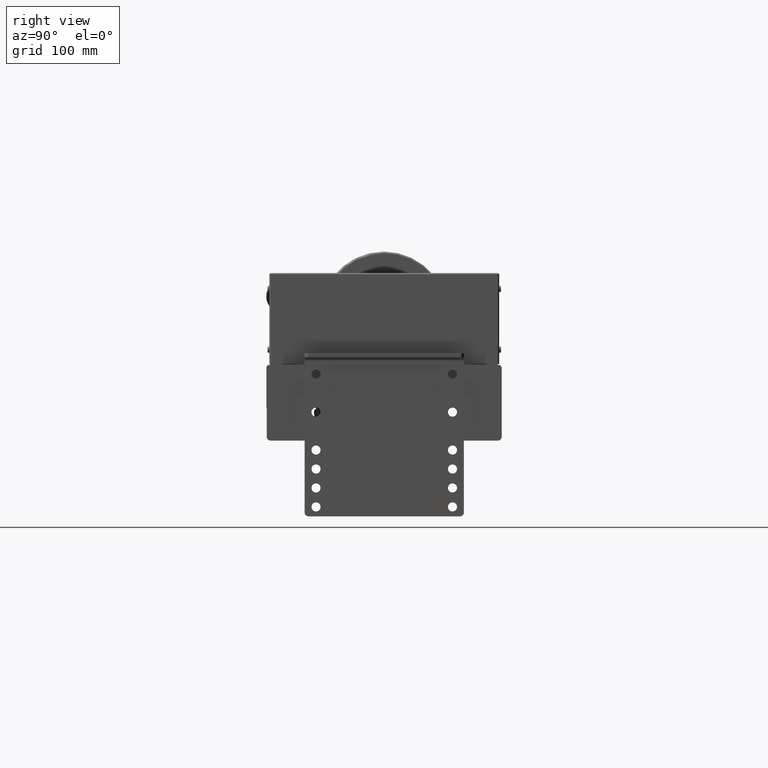
[diagram: clean part render]
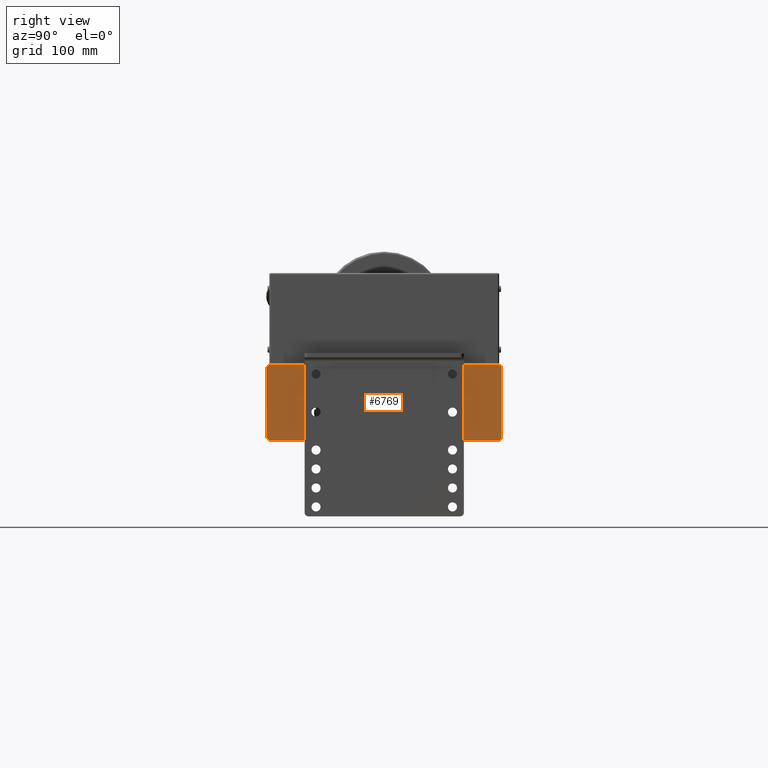
[diagram: same view with one face highlighted and labeled with its STEP entity id]
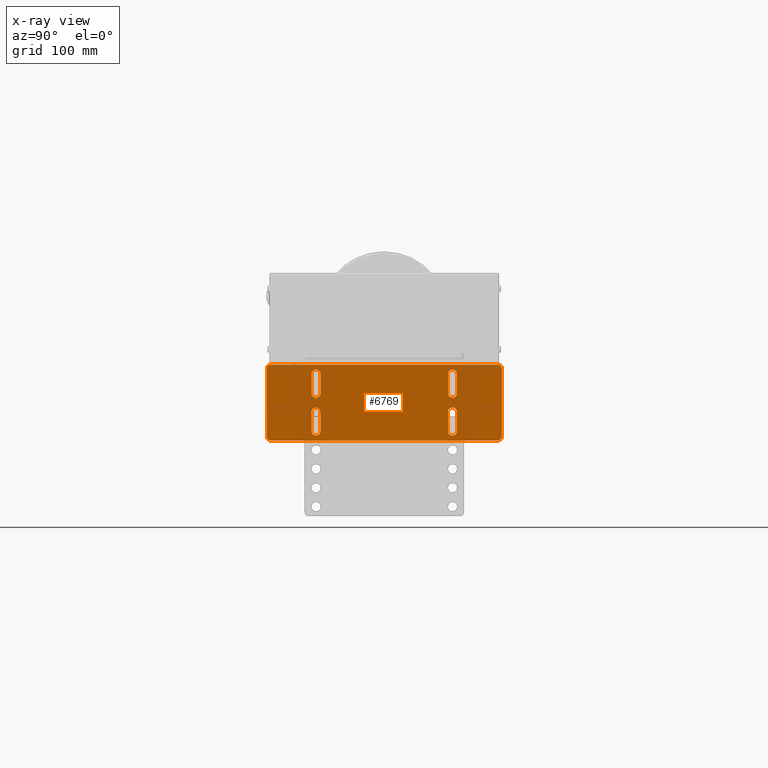
[diagram: x-ray of the same camera — body ghosted, the highlighted face saturated]
A machine part, right view. The second image highlights one B-rep face of the part: STEP entity #6769.
The next image is the same camera in x-ray: the body ghosted, the highlighted face saturated — about 0% of this face is hidden behind the body in this view.
In plain terms, the highlighted planar face has unit normal (1, -0, -0).
Its self-contained STEP definition (entity closure, byte-faithful):
#6499=CARTESIAN_POINT('',(150.0,49.999999999999915,2.500000000000000));
#6500=VERTEX_POINT('',#6499);
#6501=CARTESIAN_POINT('',(155.0,45.0,2.500000000000000));
#6502=VERTEX_POINT('',#6501);
#6503=CARTESIAN_POINT('',(150.0,45.0,2.500000000000000));
#6504=DIRECTION('',(0.0,0.0,-1.000000000000000));
#6505=DIRECTION('',(0.707106781186547,0.707106781186547,0.0));
#6506=AXIS2_PLACEMENT_3D('',#6503,#6504,#6505);
#6507=CIRCLE('',#6506,4.999999999999999);
#6508=EDGE_CURVE('',#6500,#6502,#6507,.T.);
#6542=CARTESIAN_POINT('',(155.0,-44.999999999999886,2.500000000000000));
#6543=VERTEX_POINT('',#6542);
#6544=CARTESIAN_POINT('',(155.0,45.0,2.500000000000000));
#6545=DIRECTION('',(0.0,-1.0,0.0));
#6546=VECTOR('',#6545,89.999999999999886);
#6547=LINE('',#6544,#6546);
#6548=EDGE_CURVE('',#6502,#6543,#6547,.T.);
#6567=CARTESIAN_POINT('',(-2.273737E-013,0.0,2.500000000000000));
#6568=DIRECTION('',(0.0,0.0,1.0));
#6569=DIRECTION('',(1.0,0.0,0.0));
#6570=AXIS2_PLACEMENT_3D('',#6567,#6568,#6569);
#6571=PLANE('',#6570);
#6572=ORIENTED_EDGE('',*,*,#6508,.F.);
#6573=CARTESIAN_POINT('',(-150.000000000000060,49.999999999999858,2.500000000000000));
#6574=VERTEX_POINT('',#6573);
#6575=CARTESIAN_POINT('',(-150.000000000000060,49.999999999999858,2.500000000000000));
#6576=DIRECTION('',(1.0,0.0,0.0));
#6577=VECTOR('',#6576,300.000000000000060);
#6578=LINE('',#6575,#6577);
#6579=EDGE_CURVE('',#6574,#6500,#6578,.T.);
#6580=ORIENTED_EDGE('',*,*,#6579,.F.);
#6581=CARTESIAN_POINT('',(-155.000000000000030,44.999999999999943,2.500000000000000));
#6582=VERTEX_POINT('',#6581);
#6583=CARTESIAN_POINT('',(-150.000000000000060,44.999999999999943,2.500000000000000));
#6584=DIRECTION('',(0.0,0.0,-1.000000000000000));
#6585=DIRECTION('',(-0.707106781186547,0.707106781186547,0.0));
#6586=AXIS2_PLACEMENT_3D('',#6583,#6584,#6585);
#6587=CIRCLE('',#6586,4.999999999999999);
#6588=EDGE_CURVE('',#6582,#6574,#6587,.T.);
#6589=ORIENTED_EDGE('',*,*,#6588,.F.);
#6590=CARTESIAN_POINT('',(-154.999999999999970,-44.999999999999886,2.500000000000000));
#6591=VERTEX_POINT('',#6590);
#6592=CARTESIAN_POINT('',(-154.999999999999970,-44.999999999999886,2.500000000000000));
#6593=DIRECTION('',(0.0,1.0,0.0));
#6594=VECTOR('',#6593,89.999999999999829);
#6595=LINE('',#6592,#6594);
#6596=EDGE_CURVE('',#6591,#6582,#6595,.T.);
#6597=ORIENTED_EDGE('',*,*,#6596,.F.);
#6598=CARTESIAN_POINT('',(-150.0,-49.999999999999886,2.500000000000000));
#6599=VERTEX_POINT('',#6598);
#6600=CARTESIAN_POINT('',(-150.0,-44.999999999999886,2.500000000000000));
#6601=DIRECTION('',(0.0,0.0,-1.000000000000000));
#6602=DIRECTION('',(-0.707106781186547,-0.707106781186547,0.0));
#6603=AXIS2_PLACEMENT_3D('',#6600,#6601,#6602);
#6604=CIRCLE('',#6603,4.999999999999999);
#6605=EDGE_CURVE('',#6599,#6591,#6604,.T.);
#6606=ORIENTED_EDGE('',*,*,#6605,.F.);
#6607=CARTESIAN_POINT('',(150.0,-49.999999999999886,2.500000000000000));
#6608=VERTEX_POINT('',#6607);
#6609=CARTESIAN_POINT('',(150.0,-49.999999999999886,2.500000000000000));
#6610=DIRECTION('',(-1.0,0.0,0.0));
#6611=VECTOR('',#6610,300.0);
#6612=LINE('',#6609,#6611);
#6613=EDGE_CURVE('',#6608,#6599,#6612,.T.);
#6614=ORIENTED_EDGE('',*,*,#6613,.F.);
#6615=CARTESIAN_POINT('',(150.0,-44.999999999999886,2.500000000000000));
#6616=DIRECTION('',(0.0,0.0,-1.000000000000000));
#6617=DIRECTION('',(0.707106781186547,-0.707106781186547,0.0));
#6618=AXIS2_PLACEMENT_3D('',#6615,#6616,#6617);
#6619=CIRCLE('',#6618,4.999999999999999);
#6620=EDGE_CURVE('',#6543,#6608,#6619,.T.);
#6621=ORIENTED_EDGE('',*,*,#6620,.F.);
#6622=ORIENTED_EDGE('',*,*,#6548,.F.);
#6623=EDGE_LOOP('',(#6572,#6580,#6589,#6597,#6606,#6614,#6621,#6622));
#6624=FACE_OUTER_BOUND('',#6623,.T.);
#6625=CARTESIAN_POINT('',(-84.0,12.499999999999943,2.500000000000000));
#6626=VERTEX_POINT('',#6625);
#6627=CARTESIAN_POINT('',(-84.0,37.500000000000057,2.500000000000000));
#6628=VERTEX_POINT('',#6627);
#6629=CARTESIAN_POINT('',(-84.0,12.499999999999943,2.500000000000000));
#6630=DIRECTION('',(0.0,1.0,0.0));
#6631=VECTOR('',#6630,25.000000000000114);
#6632=LINE('',#6629,#6631);
#6633=EDGE_CURVE('',#6626,#6628,#6632,.T.);
#6634=ORIENTED_EDGE('',*,*,#6633,.F.);
#6635=CARTESIAN_POINT('',(-96.0,12.499999999999943,2.500000000000000));
#6636=VERTEX_POINT('',#6635);
#6637=CARTESIAN_POINT('',(-90.0,12.499999999999943,2.500000000000000));
#6638=DIRECTION('',(0.0,0.0,1.0));
#6639=DIRECTION('',(1.0,0.0,0.0));
#6640=AXIS2_PLACEMENT_3D('',#6637,#6638,#6639);
#6641=CIRCLE('',#6640,6.0);
#6642=EDGE_CURVE('',#6636,#6626,#6641,.T.);
#6643=ORIENTED_EDGE('',*,*,#6642,.F.);
#6644=CARTESIAN_POINT('',(-95.999999999999886,37.500000000000057,2.500000000000000));
#6645=VERTEX_POINT('',#6644);
#6646=CARTESIAN_POINT('',(-95.999999999999886,37.500000000000057,2.500000000000000));
#6647=DIRECTION('',(0.0,-1.0,0.0));
#6648=VECTOR('',#6647,25.000000000000114);
#6649=LINE('',#6646,#6648);
#6650=EDGE_CURVE('',#6645,#6636,#6649,.T.);
#6651=ORIENTED_EDGE('',*,*,#6650,.F.);
#6652=CARTESIAN_POINT('',(-90.0,37.500000000000057,2.500000000000000));
#6653=DIRECTION('',(0.0,0.0,1.0));
#6654=DIRECTION('',(1.0,0.0,0.0));
#6655=AXIS2_PLACEMENT_3D('',#6652,#6653,#6654);
#6656=CIRCLE('',#6655,6.0);
#6657=EDGE_CURVE('',#6628,#6645,#6656,.T.);
#6658=ORIENTED_EDGE('',*,*,#6657,.F.);
#6659=EDGE_LOOP('',(#6634,#6643,#6651,#6658));
#6660=FACE_BOUND('',#6659,.T.);
#6661=CARTESIAN_POINT('',(96.000000000000114,12.500000000000000,2.500000000000000));
#6662=VERTEX_POINT('',#6661);
#6663=CARTESIAN_POINT('',(96.000000000000114,37.499999999999943,2.500000000000000));
#6664=VERTEX_POINT('',#6663);
#6665=CARTESIAN_POINT('',(96.000000000000114,12.500000000000000,2.500000000000000));
#6666=DIRECTION('',(0.0,1.0,0.0));
#6667=VECTOR('',#6666,24.999999999999943);
#6668=LINE('',#6665,#6667);
#6669=EDGE_CURVE('',#6662,#6664,#6668,.T.);
#6670=ORIENTED_EDGE('',*,*,#6669,.F.);
#6671=CARTESIAN_POINT('',(84.000000000000114,12.500000000000000,2.500000000000000));
#6672=VERTEX_POINT('',#6671);
#6673=CARTESIAN_POINT('',(89.999999999999773,12.499999999999943,2.500000000000000));
#6674=DIRECTION('',(0.0,0.0,1.0));
#6675=DIRECTION('',(1.0,0.0,0.0));
#6676=AXIS2_PLACEMENT_3D('',#6673,#6674,#6675);
#6677=CIRCLE('',#6676,6.0);
#6678=EDGE_CURVE('',#6672,#6662,#6677,.T.);
#6679=ORIENTED_EDGE('',*,*,#6678,.F.);
#6680=CARTESIAN_POINT('',(84.000000000000114,37.499999999999943,2.500000000000000));
#6681=VERTEX_POINT('',#6680);
#6682=CARTESIAN_POINT('',(84.000000000000114,37.499999999999943,2.500000000000000));
#6683=DIRECTION('',(0.0,-1.0,0.0));
#6684=VECTOR('',#6683,24.999999999999943);
#6685=LINE('',#6682,#6684);
#6686=EDGE_CURVE('',#6681,#6672,#6685,.T.);
#6687=ORIENTED_EDGE('',*,*,#6686,.F.);
#6688=CARTESIAN_POINT('',(89.999999999999773,37.500000000000057,2.500000000000000));
#6689=DIRECTION('',(0.0,0.0,1.0));
#6690=DIRECTION('',(1.0,0.0,0.0));
#6691=AXIS2_PLACEMENT_3D('',#6688,#6689,#6690);
#6692=CIRCLE('',#6691,6.0);
#6693=EDGE_CURVE('',#6664,#6681,#6692,.T.);
#6694=ORIENTED_EDGE('',*,*,#6693,.F.);
#6695=EDGE_LOOP('',(#6670,#6679,#6687,#6694));
#6696=FACE_BOUND('',#6695,.T.);
#6697=CARTESIAN_POINT('',(96.000000000000114,-37.500000000000000,2.500000000000000));
#6698=VERTEX_POINT('',#6697);
#6699=CARTESIAN_POINT('',(96.000000000000114,-12.499999999999886,2.500000000000000));
#6700=VERTEX_POINT('',#6699);
#6701=CARTESIAN_POINT('',(96.000000000000114,-37.500000000000000,2.500000000000000));
#6702=DIRECTION('',(0.0,1.0,0.0));
#6703=VECTOR('',#6702,25.000000000000114);
#6704=LINE('',#6701,#6703);
#6705=EDGE_CURVE('',#6698,#6700,#6704,.T.);
#6706=ORIENTED_EDGE('',*,*,#6705,.F.);
#6707=CARTESIAN_POINT('',(83.999999999999886,-37.500000000000000,2.500000000000000));
#6708=VERTEX_POINT('',#6707);
#6709=CARTESIAN_POINT('',(90.0,-37.500000000000000,2.500000000000000));
#6710=DIRECTION('',(0.0,0.0,1.0));
#6711=DIRECTION('',(1.0,0.0,0.0));
#6712=AXIS2_PLACEMENT_3D('',#6709,#6710,#6711);
#6713=CIRCLE('',#6712,6.0);
#6714=EDGE_CURVE('',#6708,#6698,#6713,.T.);
#6715=ORIENTED_EDGE('',*,*,#6714,.F.);
#6716=CARTESIAN_POINT('',(84.0,-12.499999999999886,2.500000000000000));
#6717=VERTEX_POINT('',#6716);
#6718=CARTESIAN_POINT('',(84.0,-12.499999999999886,2.500000000000000));
#6719=DIRECTION('',(0.0,-1.0,0.0));
#6720=VECTOR('',#6719,25.000000000000114);
#6721=LINE('',#6718,#6720);
#6722=EDGE_CURVE('',#6717,#6708,#6721,.T.);
#6723=ORIENTED_EDGE('',*,*,#6722,.F.);
#6724=CARTESIAN_POINT('',(90.0,-12.499999999999886,2.500000000000000));
#6725=DIRECTION('',(0.0,0.0,1.0));
#6726=DIRECTION('',(1.0,0.0,0.0));
#6727=AXIS2_PLACEMENT_3D('',#6724,#6725,#6726);
#6728=CIRCLE('',#6727,6.0);
#6729=EDGE_CURVE('',#6700,#6717,#6728,.T.);
#6730=ORIENTED_EDGE('',*,*,#6729,.F.);
#6731=EDGE_LOOP('',(#6706,#6715,#6723,#6730));
#6732=FACE_BOUND('',#6731,.T.);
#6733=CARTESIAN_POINT('',(-84.0,-37.500000000000000,2.500000000000000));
#6734=VERTEX_POINT('',#6733);
#6735=CARTESIAN_POINT('',(-84.0,-12.500000000000057,2.500000000000000));
#6736=VERTEX_POINT('',#6735);
#6737=CARTESIAN_POINT('',(-84.0,-37.500000000000000,2.500000000000000));
#6738=DIRECTION('',(0.0,1.0,0.0));
#6739=VECTOR('',#6738,24.999999999999943);
#6740=LINE('',#6737,#6739);
#6741=EDGE_CURVE('',#6734,#6736,#6740,.T.);
#6742=ORIENTED_EDGE('',*,*,#6741,.F.);
#6743=CARTESIAN_POINT('',(-96.0,-37.500000000000000,2.500000000000000));
#6744=VERTEX_POINT('',#6743);
#6745=CARTESIAN_POINT('',(-90.0,-37.500000000000057,2.500000000000000));
#6746=DIRECTION('',(0.0,0.0,1.0));
#6747=DIRECTION('',(1.0,0.0,0.0));
#6748=AXIS2_PLACEMENT_3D('',#6745,#6746,#6747);
#6749=CIRCLE('',#6748,6.0);
#6750=EDGE_CURVE('',#6744,#6734,#6749,.T.);
#6751=ORIENTED_EDGE('',*,*,#6750,.F.);
#6752=CARTESIAN_POINT('',(-96.0,-12.500000000000057,2.500000000000000));
#6753=VERTEX_POINT('',#6752);
#6754=CARTESIAN_POINT('',(-96.0,-12.500000000000057,2.500000000000000));
#6755=DIRECTION('',(0.0,-1.0,0.0));
#6756=VECTOR('',#6755,24.999999999999943);
#6757=LINE('',#6754,#6756);
#6758=EDGE_CURVE('',#6753,#6744,#6757,.T.);
#6759=ORIENTED_EDGE('',*,*,#6758,.F.);
#6760=CARTESIAN_POINT('',(-90.0,-12.499999999999943,2.500000000000000));
#6761=DIRECTION('',(0.0,0.0,1.0));
#6762=DIRECTION('',(1.0,0.0,0.0));
#6763=AXIS2_PLACEMENT_3D('',#6760,#6761,#6762);
#6764=CIRCLE('',#6763,6.0);
#6765=EDGE_CURVE('',#6736,#6753,#6764,.T.);
#6766=ORIENTED_EDGE('',*,*,#6765,.F.);
#6767=EDGE_LOOP('',(#6742,#6751,#6759,#6766));
#6768=FACE_BOUND('',#6767,.T.);
#6769=ADVANCED_FACE('',(#6624,#6660,#6696,#6732,#6768),#6571,.T.);